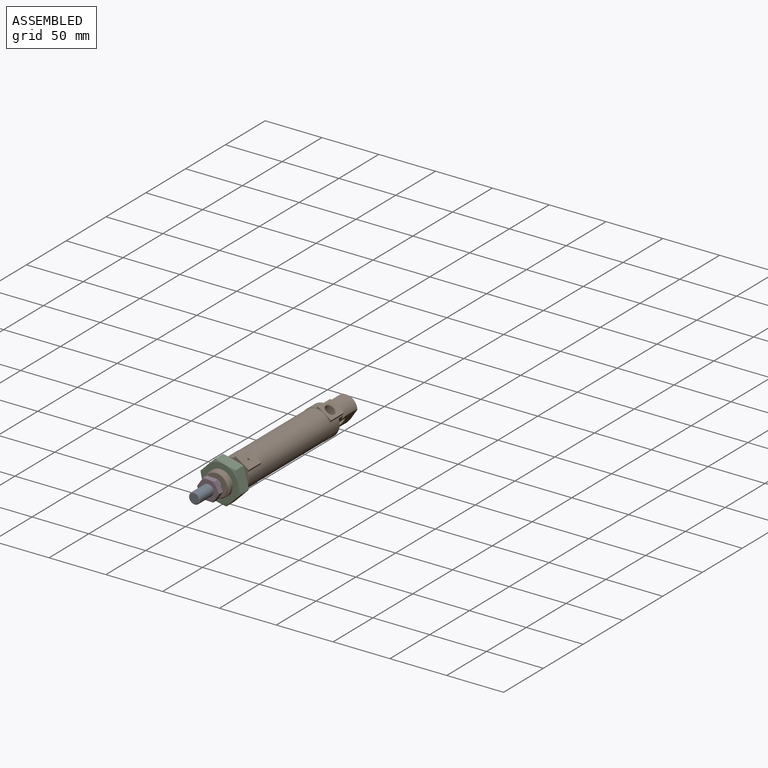
[diagram: assembled view]
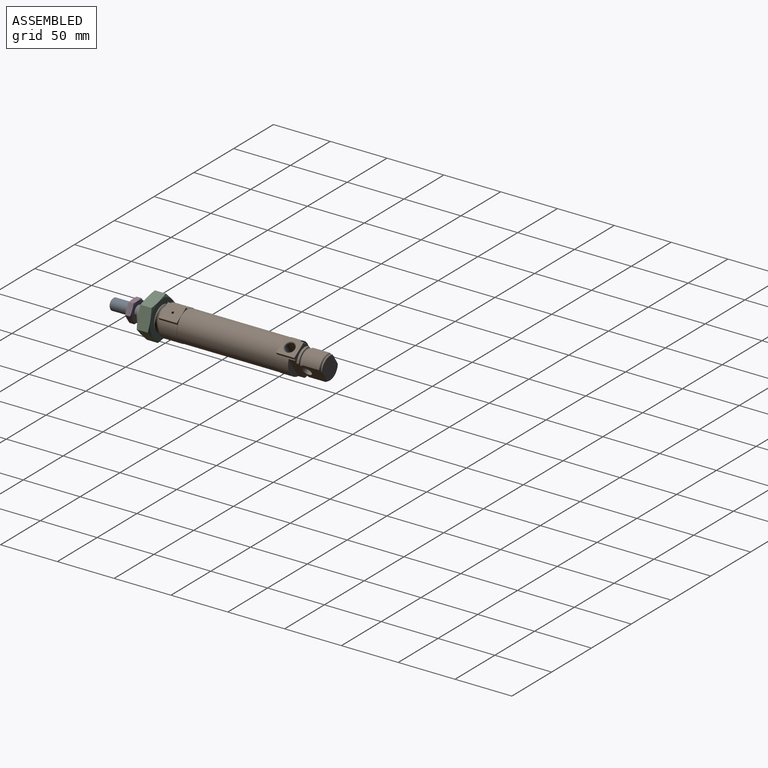
[diagram: assembled view, second angle]
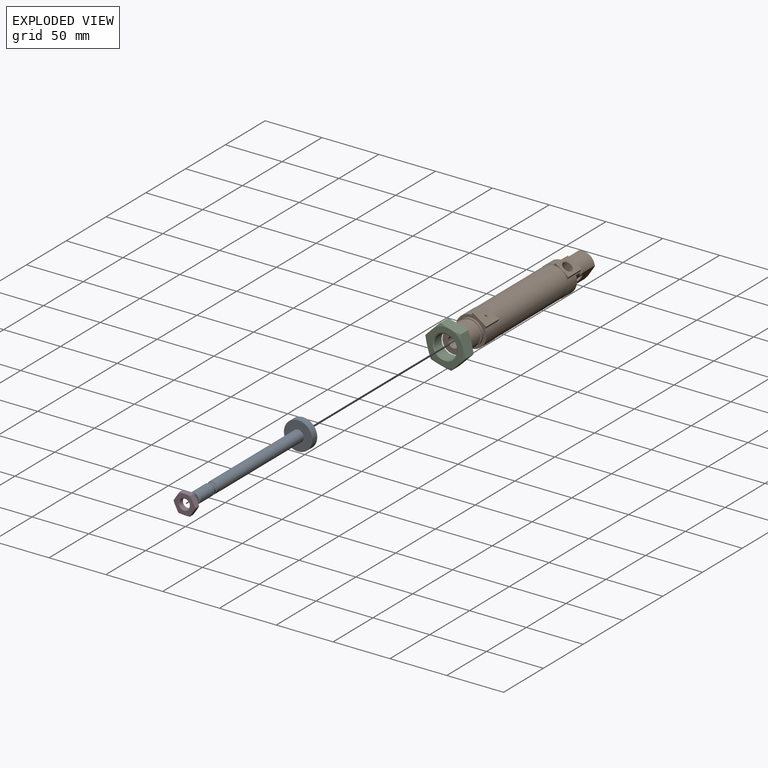
[diagram: exploded view]
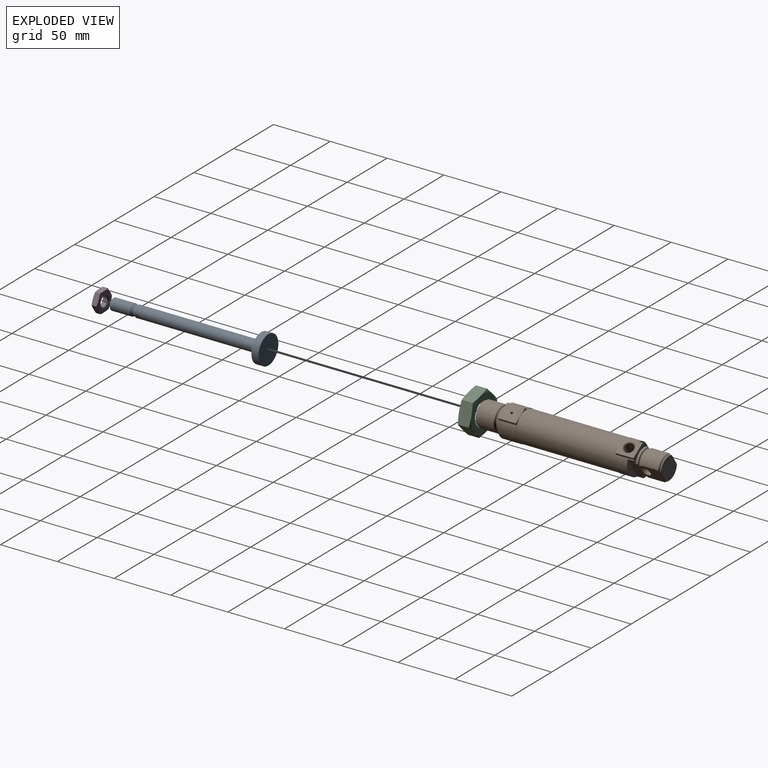
[diagram: exploded view, second angle]
ASSEMBLY  parts=4 mates=3
PART A: 25 faces, bbox 25x136.9x25.5 mm
  f0: plane 8.62x8.47mm, normal (0,-1,0), area 56.3mm2, adj f1,f2
  f1: cone r=4.23mm half-angle=45deg, axis (0,1,0), area 15.7mm2, adj f0,f2,f3
  f2: cone r=4.23mm half-angle=45deg, axis (0,1,0), area 15.7mm2, adj f0,f1,f4
  f3: cylinder r=5mm len=17.54mm, axis (0,-1,0), area 275.4mm2, adj f1,f4,f6
  f4: cylinder r=5mm len=17.54mm, axis (0,-1,0), area 275.4mm2, adj f2,f3,f7
  f5: plane 25.46x25mm, normal (0,1,0), area 490.9mm2, adj f8,f9
  f6: cone r=5mm half-angle=20deg, axis (0,-1,0), area 32.4mm2, adj f3,f7,f10
  f7: cone r=5mm half-angle=20deg, axis (0,-1,0), area 32.4mm2, adj f4,f6,f11
  f8: cylinder r=12.5mm len=25mm, axis (0,-1,0), area 245.4mm2, adj f5,f9,f12
  f9: cylinder r=12.5mm len=25mm, axis (0,-1,0), area 245.4mm2, adj f5,f8,f12
  f10: torus R=4.8mm, axis (0,1,0), area 2.8mm2, adj f6,f11,f14
  f11: torus R=4.8mm, axis (0,1,0), area 2.8mm2, adj f7,f10,f15
  f12: plane 25.46x25mm, normal (0,-1,0), area 412.3mm2, adj f8,f9,f18,f20
  f13: plane 4.36x0.5mm, normal (0,-1,0), area 1.5mm2, adj f17,f18,f20
  f14: cylinder r=4.2mm len=8.4mm, axis (0,-1,0), area 10.5mm2, adj f10,f15,f16,f22
  f15: cylinder r=4.2mm len=8.4mm, axis (0,-1,0), area 10.5mm2, adj f11,f14,f16,f22
  f16: torus R=4.8mm, axis (0,1,0), area 12.4mm2, adj f14,f15,f17,f22,f23
  f17: plane 4.58x4.36mm, normal (1,0,0), area 19.8mm2, adj f13,f16,f18,f20,f21,f23
  f18: cylinder r=5mm len=108.6mm, axis (0,-1,0), area 1685.6mm2, adj f12,f13,f17,f19,f20,f23,f24
  f19: plane 4.36x0.5mm, normal (0,-1,0), area 1.5mm2, adj f18,f20,f24
  f20: cylinder r=5mm len=108.6mm, axis (0,-1,0), area 1685.6mm2, adj f12,f13,f17,f18,f19,f21,f24
  f21: plane 9x3.38mm, normal (0,-1,0), area 2.3mm2, adj f17,f20,f22,f24
  f22: torus R=4.8mm, axis (0,1,0), area 12.4mm2, adj f14,f15,f16,f21,f24
  f23: plane 9x3.38mm, normal (0,-1,0), area 2.3mm2, adj f16,f17,f18,f24
  f24: plane 4.58x4.36mm, normal (-1,0,0), area 19.8mm2, adj f18,f19,f20,f21,f22,f23
PART B: 86 faces, bbox 27.6x163.8x27.3 mm
  f0: cylinder r=11mm len=22mm, axis (0,-1,0), area 516.6mm2, adj f1,f2,f4
  f1: cylinder r=11mm len=22mm, axis (0,-1,0), area 516.6mm2, adj f0,f3,f5
  f2: cone r=11mm half-angle=45deg, axis (0,-1,0), area 42.9mm2, adj f0,f3,f6
  f3: cone r=11mm half-angle=45deg, axis (0,-1,0), area 42.9mm2, adj f1,f2,f7
  f4: cone r=10mm half-angle=45deg, axis (0,1,0), area 46.7mm2, adj f0,f5,f8
  f5: cone r=10mm half-angle=45deg, axis (0,1,0), area 46.7mm2, adj f1,f4,f9
  f6: torus R=10.65mm, axis (0,1,0), area 19.6mm2, adj f2,f7,f11
  f7: torus R=10.65mm, axis (0,1,0), area 19.6mm2, adj f3,f6,f12
  f8: cylinder r=10mm len=20mm, axis (0,-1,0), area 25.1mm2, adj f4,f9,f13
  f9: cylinder r=10mm len=20mm, axis (0,-1,0), area 25.1mm2, adj f5,f8,f14
  f10: plane 25.46x25mm, normal (0,-1,0), area 490.9mm2, adj f15,f16
  f11: cylinder r=9.85mm len=19.7mm, axis (0,-1,0), area 23.8mm2, adj f6,f12,f17
  f12: cylinder r=9.85mm len=19.7mm, axis (0,-1,0), area 23.8mm2, adj f7,f11,f18
  f13: cone r=9.8mm half-angle=45deg, axis (0,1,0), area 8.8mm2, adj f8,f14,f19
  f14: cone r=9.8mm half-angle=45deg, axis (0,1,0), area 8.8mm2, adj f9,f13,f19
  f15: cylinder r=12.5mm len=56.25mm, axis (0,-1,0), area 2208.9mm2, adj f10,f16,f21
  f16: cylinder r=12.5mm len=56.25mm, axis (0,-1,0), area 2208.9mm2, adj f10,f15,f21
  f17: torus R=10.65mm, axis (0,1,0), area 40mm2, adj f11,f18,f22
  f18: torus R=10.65mm, axis (0,1,0), area 40mm2, adj f12,f17,f22
  f19: plane 19.96x19.6mm, normal (0,-1,0), area 223.2mm2, adj f13,f14,f20,f23
  f20: cylinder r=5mm len=52.6mm, axis (0,-1,0), area 826.2mm2, adj f19,f21,f23
  f21: plane 25.46x25mm, normal (0,1,0), area 412.3mm2, adj f15,f16,f20,f23
  f22: plane 22.41x22mm, normal (0,-1,0), area 23.8mm2, adj f17,f18,f24,f25
  f23: cylinder r=5mm len=52.6mm, axis (0,-1,0), area 823.1mm2, adj f19,f20,f21,f26,f27
  f24: cylinder r=11mm len=22mm, axis (0,-1,0), area 69.1mm2, adj f22,f25,f28
  f25: cylinder r=11mm len=22mm, axis (0,-1,0), area 69.1mm2, adj f22,f24,f28
  f26: cylinder r=1mm len=8.6mm, axis (0,0,-1), area 27mm2, adj f23,f27,f35
  f27: cylinder r=1mm len=8.6mm, axis (0,0,-1), area 27mm2, adj f23,f26,f35
  f28: plane 27.32x27mm, normal (0,-1,0), area 202.2mm2, adj f24,f25,f29,f30,f31,f32,f33,f34
  f29: cylinder r=0.3mm len=16mm, axis (0,1,0), area 4.8mm2, adj f28,f30,f37,f60
  f30: cylinder r=13.5mm len=24.8mm, axis (0,1,0), area 553.5mm2, adj f28,f29,f31,f60
  f31: cylinder r=13.5mm len=24.8mm, axis (0,1,0), area 553.5mm2, adj f28,f30,f32,f60
  f32: cylinder r=0.3mm len=16mm, axis (0,1,0), area 4.8mm2, adj f28,f31,f33,f60
  f33: plane 16x1.55mm, normal (-1,0,0), area 24.8mm2, adj f28,f32,f34,f60
  f34: cylinder r=0.4mm len=16mm, axis (0,1,0), area 10.1mm2, adj f28,f33,f35,f60
  f35: plane 16x13.7mm, normal (0,0,1), area 216.1mm2, adj f26,f27,f28,f34,f36,f60
  f36: cylinder r=0.4mm len=16mm, axis (0,1,0), area 10.1mm2, adj f28,f35,f37,f60
  f37: plane 16x1.55mm, normal (1,0,0), area 24.8mm2, adj f28,f29,f36,f60
  f38: cylinder r=4mm len=16mm, axis (1,0,0), area 201.1mm2, adj f39,f65,f66
  f39: cylinder r=4mm len=16mm, axis (1,0,0), area 201.1mm2, adj f38,f65,f66
  f40: cylinder r=11mm len=16mm, axis (0,-1,0), area 35.8mm2, adj f41,f63,f65,f66
  f41: plane 16x4.02mm, normal (0,1,0), area 6.3mm2, adj f40,f42,f65,f66
  f42: torus R=10.65mm, axis (0,1,0), area 22.9mm2, adj f41,f43,f65,f66
  f43: cylinder r=9.85mm len=16mm, axis (0,-1,0), area 14.4mm2, adj f42,f44,f65,f66
  f44: torus R=10.65mm, axis (0,1,0), area 11.6mm2, adj f43,f45,f65,f66
  f45: cone r=10.08mm half-angle=45deg, axis (0,1,0), area 23.6mm2, adj f44,f46,f65,f66
  f46: cylinder r=11mm len=16mm, axis (0,-1,0), area 267.8mm2, adj f45,f47,f65,f66
  f47: cone r=11mm half-angle=45deg, axis (0,-1,0), area 25.8mm2, adj f46,f48,f65,f66
  f48: cylinder r=10mm len=16mm, axis (0,-1,0), area 14.8mm2, adj f47,f49,f65,f66
  f49: cone r=10mm half-angle=45deg, axis (0,-1,0), area 5.3mm2, adj f48,f50,f65,f66
  f50: plane 19.73x16mm, normal (0,1,0), area 274mm2, adj f49,f51,f65,f66
  f51: cone r=10mm half-angle=45deg, axis (0,-1,0), area 5.3mm2, adj f50,f52,f65,f66
  f52: cylinder r=10mm len=16mm, axis (0,-1,0), area 14.8mm2, adj f51,f53,f65,f66
  f53: cone r=11mm half-angle=45deg, axis (0,-1,0), area 25.8mm2, adj f52,f54,f65,f66
  f54: cylinder r=11mm len=16mm, axis (0,-1,0), area 267.8mm2, adj f53,f55,f65,f66
  f55: cone r=10.08mm half-angle=45deg, axis (0,1,0), area 23.6mm2, adj f54,f56,f65,f66
  f56: torus R=10.65mm, axis (0,1,0), area 11.6mm2, adj f55,f57,f65,f66
  f57: cylinder r=9.85mm len=16mm, axis (0,-1,0), area 14.4mm2, adj f56,f58,f65,f66
  f58: torus R=10.65mm, axis (0,1,0), area 22.9mm2, adj f57,f59,f65,f66
  f59: plane 16x4.02mm, normal (0,1,0), area 6.3mm2, adj f58,f64,f65,f66
  f60: plane 27.32x27mm, normal (0,1,0), area 30.8mm2, adj f29,f30,f31,f32,f33,f34,f35,f36
  f61: plane 21.75x5.59mm, normal (0,1,0), area 83.7mm2, adj f66,f69
  f62: plane 21.75x5.59mm, normal (0,1,0), area 83.7mm2, adj f65,f70
  f63: plane 16x5.95mm, normal (0,1,0), area 43.7mm2, adj f40,f65,f66,f69,f70
  f64: cylinder r=11mm len=16mm, axis (0,-1,0), area 35.8mm2, adj f59,f65,f66,f76
  f65: plane 27.79x22.04mm, normal (-1,0,0), area 388.5mm2, adj f38,f39,f40,f41,f42,f43,f44,f45
  f66: plane 27.79x22.04mm, normal (1,0,0), area 388.5mm2, adj f38,f39,f40,f41,f42,f43,f44,f45
  f67: cylinder r=13.25mm len=87.5mm, axis (0,-1,0), area 3642.3mm2, adj f60,f68,f78
  f68: cylinder r=13.25mm len=87.5mm, axis (0,-1,0), area 3642.3mm2, adj f60,f67,f78
  f69: cylinder r=13.5mm len=24.8mm, axis (0,1,0), area 414.5mm2, adj f61,f63,f66,f70,f74,f76,f78
  f70: cylinder r=13.5mm len=24.8mm, axis (0,1,0), area 414.5mm2, adj f62,f63,f65,f69,f71,f76,f78
  f71: cylinder r=0.3mm len=16mm, axis (0,1,0), area 4.8mm2, adj f70,f72,f76,f78
  f72: plane 16x1.55mm, normal (-1,0,0), area 24.8mm2, adj f71,f75,f76,f78
  f73: plane 16x1.55mm, normal (1,0,0), area 24.8mm2, adj f74,f76,f77,f78
  f74: cylinder r=0.3mm len=16mm, axis (0,1,0), area 4.8mm2, adj f69,f73,f76,f78
  f75: cylinder r=0.4mm len=16mm, axis (0,1,0), area 10.1mm2, adj f72,f76,f78,f80
  f76: plane 16x5.95mm, normal (0,1,0), area 53.5mm2, adj f64,f65,f66,f69,f70,f71,f72,f73
  f77: cylinder r=0.4mm len=16mm, axis (0,1,0), area 10.1mm2, adj f73,f76,f78,f80
  f78: plane 27.32x27mm, normal (0,-1,0), area 30.8mm2, adj f67,f68,f69,f70,f71,f72,f73,f74
  f79: cone r=4.28mm half-angle=45deg, axis (0,0,1), area 11.8mm2, adj f80,f81,f82
  f80: plane 16x13.7mm, normal (0,0,1), area 144.9mm2, adj f75,f76,f77,f78,f79,f82
  f81: cylinder r=4.28mm len=15.42mm, axis (0,0,-1), area 207.5mm2, adj f79,f83,f84
  f82: cone r=4.28mm half-angle=45deg, axis (0,0,1), area 11.8mm2, adj f79,f80,f84
  f83: cone r=866.03mm half-angle=60deg, axis (0,0,1), area 33.3mm2, adj f81,f85
  f84: cylinder r=4.28mm len=15.42mm, axis (0,0,-1), area 207.5mm2, adj f81,f82,f85
  f85: cone r=866.03mm half-angle=60deg, axis (0,0,1), area 33.3mm2, adj f83,f84
PART C: 18 faces, bbox 37x11x37 mm
  f0: cylinder r=10.19mm len=20.38mm, axis (0,-1,0), area 300.1mm2, adj f1,f2,f4
  f1: cylinder r=10.19mm len=20.38mm, axis (0,-1,0), area 300.1mm2, adj f0,f3,f5
  f2: cone r=11mm half-angle=45deg, axis (0,-1,0), area 38.2mm2, adj f0,f3,f7
  f3: cone r=11mm half-angle=45deg, axis (0,-1,0), area 38.2mm2, adj f1,f2,f7
  f4: cone r=10.19mm half-angle=45deg, axis (0,1,0), area 38.2mm2, adj f0,f5,f10
  f5: cone r=10.19mm half-angle=45deg, axis (0,1,0), area 38.2mm2, adj f1,f4,f10
  f6: plane 18.48x10.97mm, normal (-1,0,0), area 194.3mm2, adj f8,f9,f11,f12
  f7: plane 32.49x31.9mm, normal (0,-1,0), area 419.1mm2, adj f2,f3,f8,f13
  f8: cone r=15.95mm half-angle=75deg, axis (0,1,0), area 45.3mm2, adj f6,f7,f9,f12,f13
  f9: plane 16x10.99mm, normal (-0.5,0,0.87), area 194.3mm2, adj f6,f8,f11,f14
  f10: plane 32.49x31.9mm, normal (0,1,0), area 419.1mm2, adj f4,f5,f11,f15
  f11: cone r=36.48mm half-angle=75deg, axis (0,-1,0), area 45.3mm2, adj f6,f9,f10,f12,f15
  f12: plane 16x10.99mm, normal (-0.5,0,-0.87), area 194.3mm2, adj f6,f8,f11,f16
  f13: cone r=15.95mm half-angle=75deg, axis (0,1,0), area 45.3mm2, adj f7,f8,f14,f16,f17
  f14: plane 16x10.99mm, normal (0.5,0,0.87), area 194.3mm2, adj f9,f13,f15,f17
  f15: cone r=36.48mm half-angle=75deg, axis (0,-1,0), area 45.3mm2, adj f10,f11,f14,f16,f17
  f16: plane 16x10.99mm, normal (0.5,0,-0.87), area 194.3mm2, adj f12,f13,f15,f17
  f17: plane 18.48x10.97mm, normal (1,0,0), area 194.3mm2, adj f13,f14,f15,f16
PART D: 18 faces, bbox 19.6x5x19.6 mm
  f0: cylinder r=4.32mm len=8.65mm, axis (0,1,0), area 49.5mm2, adj f1,f2,f4
  f1: cylinder r=4.32mm len=8.65mm, axis (0,1,0), area 49.5mm2, adj f0,f3,f5
  f2: cone r=5mm half-angle=45deg, axis (0,1,0), area 14mm2, adj f0,f3,f7
  f3: cone r=5mm half-angle=45deg, axis (0,1,0), area 14mm2, adj f1,f2,f7
  f4: cone r=4.32mm half-angle=45deg, axis (0,-1,0), area 14mm2, adj f0,f5,f10
  f5: cone r=4.32mm half-angle=45deg, axis (0,-1,0), area 14mm2, adj f1,f4,f10
  f6: plane 9.82x4.98mm, normal (-1,0,0), area 46.4mm2, adj f8,f9,f11,f12
  f7: plane 17.21x16.9mm, normal (0,1,0), area 145.8mm2, adj f2,f3,f8,f13
  f8: cone r=8.45mm half-angle=75deg, axis (0,-1,0), area 13.4mm2, adj f6,f7,f9,f12,f13
  f9: plane 8.5x5.01mm, normal (-0.5,0,-0.87), area 46.4mm2, adj f6,f8,f11,f14
  f10: plane 17.21x16.9mm, normal (0,-1,0), area 145.8mm2, adj f4,f5,f11,f15
  f11: cone r=17.78mm half-angle=75deg, axis (0,1,0), area 13.4mm2, adj f6,f9,f10,f12,f15
  f12: plane 8.5x5.01mm, normal (-0.5,0,0.87), area 46.4mm2, adj f6,f8,f11,f16
  f13: cone r=8.45mm half-angle=75deg, axis (0,-1,0), area 13.4mm2, adj f7,f8,f14,f16,f17
  f14: plane 8.5x5.01mm, normal (0.5,0,-0.87), area 46.4mm2, adj f9,f13,f15,f17
  f15: cone r=17.78mm half-angle=75deg, axis (0,1,0), area 13.4mm2, adj f10,f11,f14,f16,f17
  f16: plane 8.5x5.01mm, normal (0.5,0,0.87), area 46.4mm2, adj f12,f13,f15,f17
  f17: plane 9.82x4.98mm, normal (1,0,0), area 46.4mm2, adj f13,f14,f15,f16
PLACE A rot(axis=(0,1,0),33.5deg) t=(53.37,-65.77,25.1)mm
PLACE B rot(axis=(0,1,0),33.5deg) t=(53.37,-66.2,25.1)mm
PLACE C rot(axis=(0,1,0),104.7deg) t=(53.37,-63.99,25.1)mm
PLACE D rot(axis=(0,1,0),33.5deg) t=(53.37,-56.3,25.1)mm
MATE cylindrical C.f0 <-> B.f30  axis (0,-1,0) through (53.37,-60.99,25.1)mm
MATE slider A.f1 <-> B.f0  axis (0,-1,0) through (53.37,-17.47,25.1)mm
MATE cylindrical D.f0 <-> A.f1  axis (0,-1,0) through (53.37,-76.46,25.1)mm
